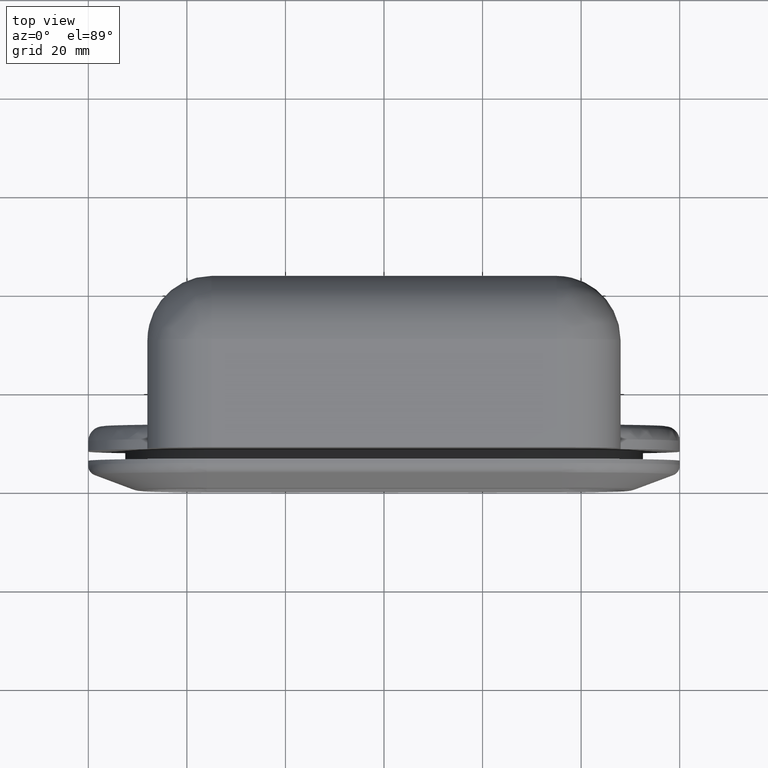
[diagram: clean part render]
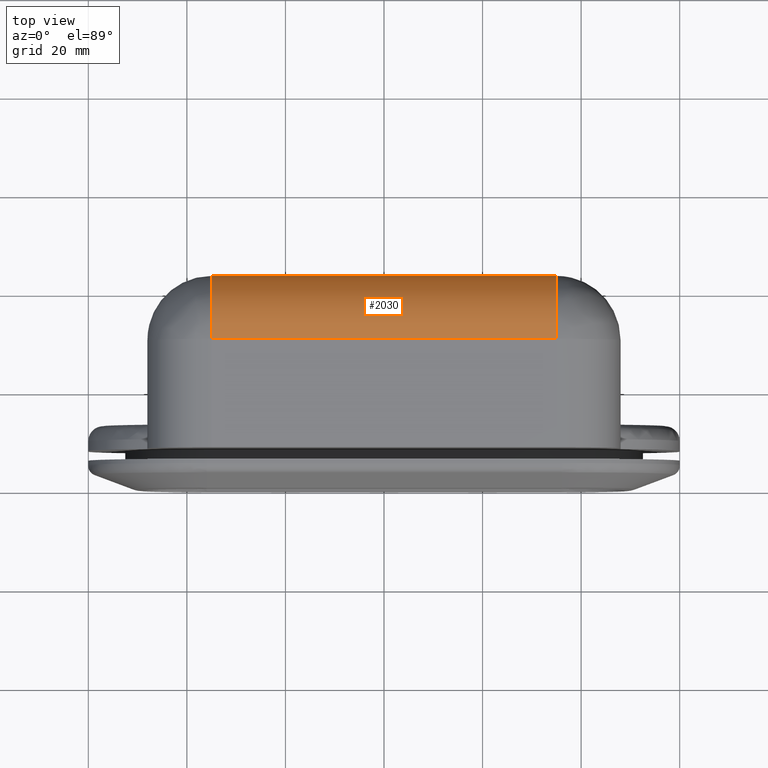
[diagram: same view with one face highlighted and labeled with its STEP entity id]
A machine part, top view. The second image highlights one B-rep face of the part: STEP entity #2030.
In plain terms, the highlighted face is a freeform B-spline surface patch.
Its self-contained STEP definition (entity closure, byte-faithful):
#1900=CARTESIAN_POINT('',(-35.0,30.0,47.0));
#1901=VERTEX_POINT('',#1900);
#1954=CARTESIAN_POINT('',(-35.0,43.0,34.0));
#1955=VERTEX_POINT('',#1954);
#1956=CARTESIAN_POINT('',(-35.0,30.0,47.0));
#1957=CARTESIAN_POINT('',(-35.0,43.0,47.000000000000014));
#1958=CARTESIAN_POINT('',(-35.0,43.0,34.0));
#1966=(BOUNDED_CURVE()B_SPLINE_CURVE(2,(#1956,#1957,#1958),.UNSPECIFIED.,.F.,.U.)CURVE()GEOMETRIC_REPRESENTATION_ITEM()QUASI_UNIFORM_CURVE()RATIONAL_B_SPLINE_CURVE((1.0,0.707106781186547,1.0))REPRESENTATION_ITEM(''));
#1967=EDGE_CURVE('',#1901,#1955,#1966,.T.);
#1986=CARTESIAN_POINT('',(36.750000000000000,42.999504999834222,33.886555038521152));
#1987=CARTESIAN_POINT('',(-36.793750000000003,42.999504999834222,33.886555038521152));
#1988=CARTESIAN_POINT('',(36.749999999999993,43.121159826834081,47.826817446152774));
#1989=CARTESIAN_POINT('',(-36.793750000000003,43.121159826834081,47.826817446152774));
#1990=CARTESIAN_POINT('',(36.750000000000000,29.206368986046851,46.975752379484263));
#1991=CARTESIAN_POINT('',(-36.793750000000003,29.206368986046851,46.975752379484263));
#1999=(BOUNDED_SURFACE()B_SPLINE_SURFACE(1,2,((#1986,#1988,#1990),(#1987,#1989,#1991)),.UNSPECIFIED.,.F.,.F.,.U.)B_SPLINE_SURFACE_WITH_KNOTS((2,2),(3,3),(0.0,73.543750000000003),(0.0,22.610243497968529),.UNSPECIFIED.)GEOMETRIC_REPRESENTATION_ITEM()RATIONAL_B_SPLINE_SURFACE(((1.0,0.681998360062499,1.0),(1.0,0.681998360062499,1.0)))REPRESENTATION_ITEM('')SURFACE());
#2000=CARTESIAN_POINT('',(35.0,30.0,47.0));
#2001=VERTEX_POINT('',#2000);
#2002=CARTESIAN_POINT('',(35.0,43.0,34.0));
#2003=VERTEX_POINT('',#2002);
#2004=CARTESIAN_POINT('',(35.0,30.0,47.0));
#2005=CARTESIAN_POINT('',(35.0,43.0,47.000000000000014));
#2006=CARTESIAN_POINT('',(35.0,43.0,34.0));
#2014=(BOUNDED_CURVE()B_SPLINE_CURVE(2,(#2004,#2005,#2006),.UNSPECIFIED.,.F.,.U.)CURVE()GEOMETRIC_REPRESENTATION_ITEM()QUASI_UNIFORM_CURVE()RATIONAL_B_SPLINE_CURVE((1.0,0.707106781186547,1.0))REPRESENTATION_ITEM(''));
#2015=EDGE_CURVE('',#2001,#2003,#2014,.T.);
#2016=ORIENTED_EDGE('',*,*,#2015,.T.);
#2017=CARTESIAN_POINT('',(-35.0,43.0,34.0));
#2018=CARTESIAN_POINT('',(35.0,43.0,34.0));
#2019=QUASI_UNIFORM_CURVE('',1,(#2017,#2018),.UNSPECIFIED.,.F.,.U.);
#2020=EDGE_CURVE('',#1955,#2003,#2019,.T.);
#2021=ORIENTED_EDGE('',*,*,#2020,.F.);
#2022=ORIENTED_EDGE('',*,*,#1967,.F.);
#2023=CARTESIAN_POINT('',(35.0,30.0,47.0));
#2024=CARTESIAN_POINT('',(-35.0,30.0,47.0));
#2025=QUASI_UNIFORM_CURVE('',1,(#2023,#2024),.UNSPECIFIED.,.F.,.U.);
#2026=EDGE_CURVE('',#2001,#1901,#2025,.T.);
#2027=ORIENTED_EDGE('',*,*,#2026,.F.);
#2028=EDGE_LOOP('',(#2016,#2021,#2022,#2027));
#2029=FACE_OUTER_BOUND('',#2028,.T.);
#2030=ADVANCED_FACE('',(#2029),#1999,.T.);